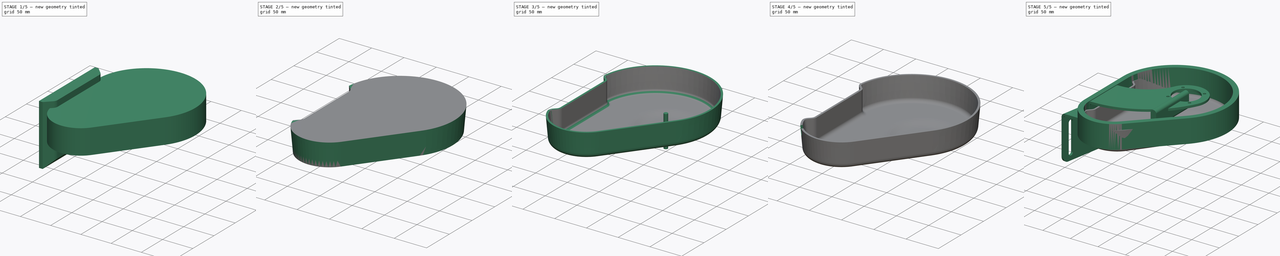
[diagram: build sequence overview — one tinted view per stage of 5, left to right]
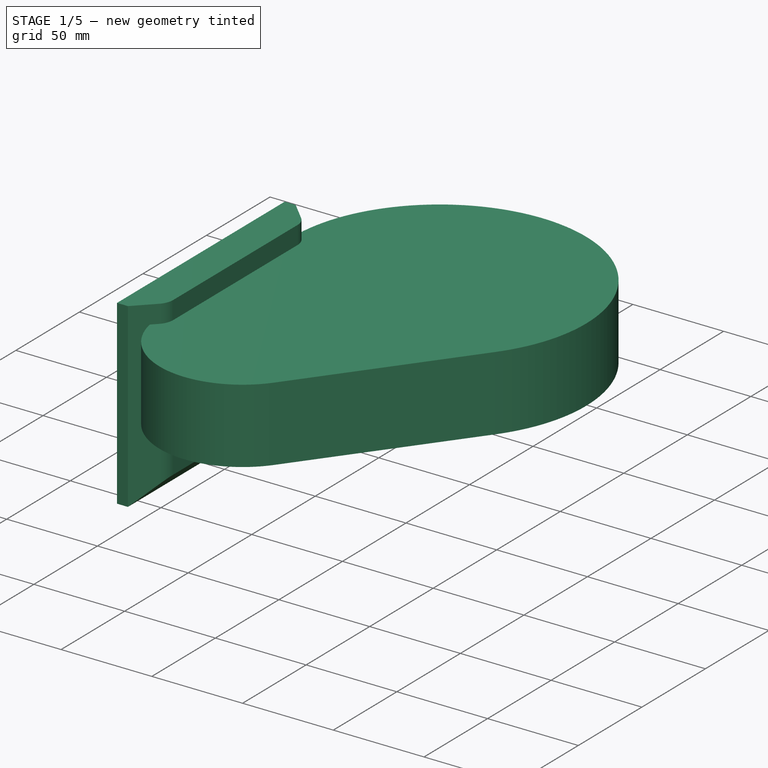
[diagram: stage 1 of 5 — iso view after this stage's code; geometry added in this stage tinted green]
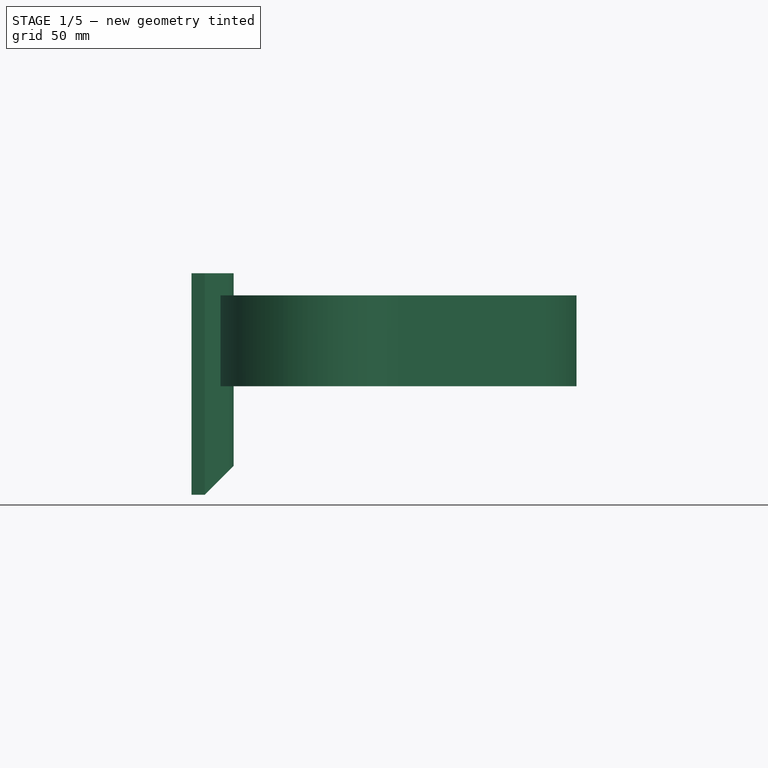
[diagram: stage 1 of 5 — front view after this stage's code; geometry added in this stage tinted green]
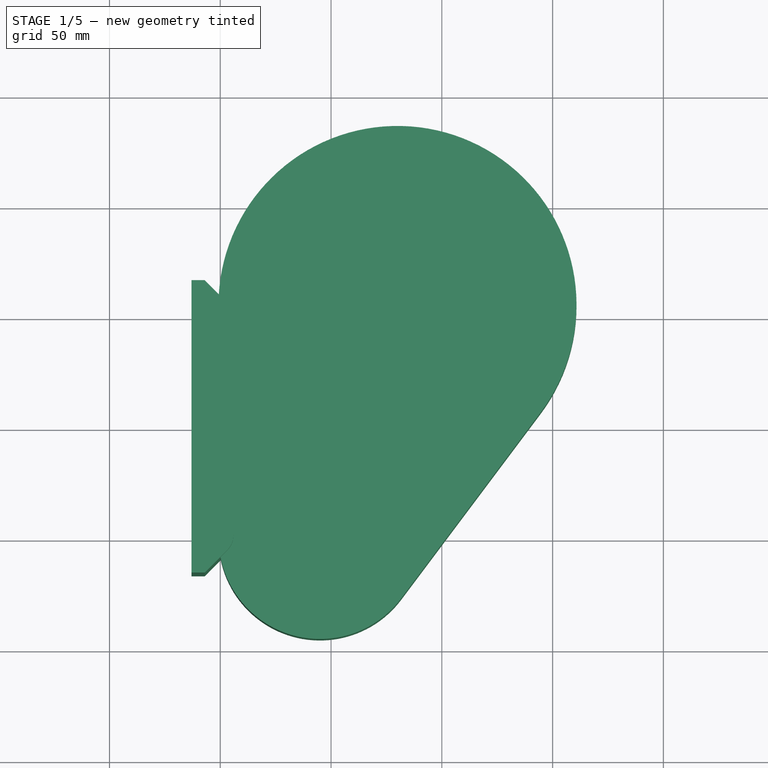
[diagram: stage 1 of 5 — top view after this stage's code; geometry added in this stage tinted green]
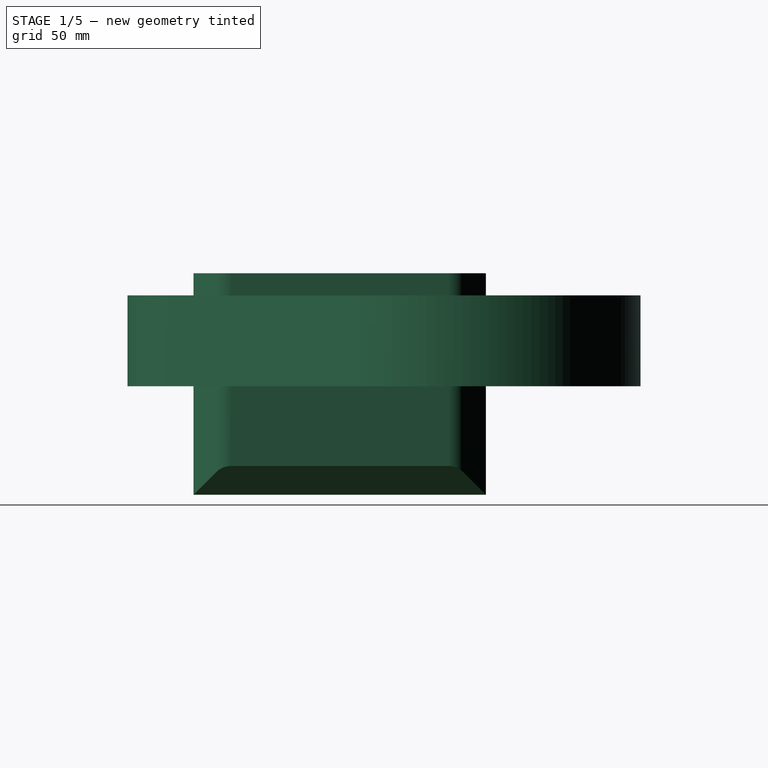
[diagram: stage 1 of 5 — right view after this stage's code; geometry added in this stage tinted green]
FCSTD DOCUMENT  (FreeCAD 0.17R6700 (Git))
Label: collar_bottom
License: All rights reserved
LicenseURL: http://en.wikipedia.org/wiki/All_rights_reserved
objects: Part::Feature×5, Sketcher::SketchObject×4, PartDesign::Pad×3, Part::Fillet×3, Part::Cut×3, Part::Thickness×2, Part::FeaturePython×2, Part::MultiFuse×2, Part::Cylinder×1, Part::Box×1, Part::Chamfer×1, PartDesign::Revolution×1, PartDesign::Draft×1
note: 33 computed .brp shape members not serialized (recipe doc carries the construction recipe); baked Part::Feature solids carry a one-line shape summary decoded from their .brp

FEATURE [Sketcher::SketchObject] Sketch
  Placement = pos=(0,0,-10) rot=(0,0,1;0rad)
  sketch-geometry (4):
    g0: ArcOfCircle CenterX=-20 CenterY=5 CenterZ=0 NormalX=0 NormalY=0 NormalZ=1 Radius=80.8 StartAngle=5.63968 EndAngle=9.42478
    g1: LineSegment StartX=-100.8 StartY=5.00008 StartZ=0 EndX=-100.8 EndY=-100 EndZ=0
    g2: LineSegment StartX=44.64 StartY=-43.48 StartZ=0 EndX=-18.3601 EndY=-127.48 EndZ=0
    g3: ArcOfCircle CenterX=-55 CenterY=-100 CenterZ=0 NormalX=0 NormalY=0 NormalZ=1 Radius=45.8 StartAngle=3.14159 EndAngle=5.63968
  constraints (14):
    c: Tangent(g1,g0)
    c: Tangent(g2,g0)
    c: Coincident(g0,g1)
    c: Coincident(g0,g2)
    c: DistanceX(g0,g-1) = 20
    c: Coincident(g3,g2)
    c: Coincident(g1,g3)
    c: Tangent(g3,g1)
    c: Tangent(g2,g3)
    c: Radius(g3) = 45.8
    c: Radius(g0) = 80.8
    c: DistanceY(g3,g-1) = 100
    c: Vertical(g1)
    c: DistanceY(g-1,g0) = 5
FEATURE [PartDesign::Pad] Pad
  Length = 41
  Length2 = 100
  Placement = pos=(0,0,-10) rot=(0,0,1;0rad)
  Reversed = true
  Sketch = -> Sketch
  Type = 0
FEATURE [Part::Box] Box  label="Cube"
  Height = 100
  Length = 19
  Placement = pos=(-113,-116,-100) rot=(0,0,1;0rad)
  Width = 132
FEATURE [Part::Chamfer] Chamfer
  Base = -> Box
  Edges = 3 edges r=13: [Edge5,Edge7,Edge8]
FEATURE [Part::Fillet] Fillet
  Base = -> Chamfer
  Edges = 2 edges r=10: [Edge2,Edge3]
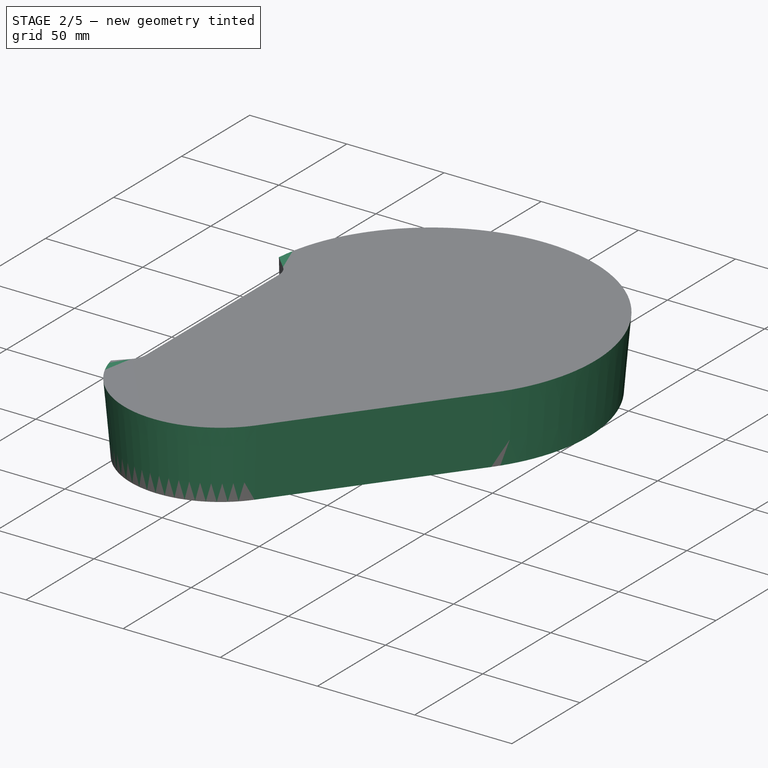
[diagram: stage 2 of 5 — iso view after this stage's code; geometry added in this stage tinted green]
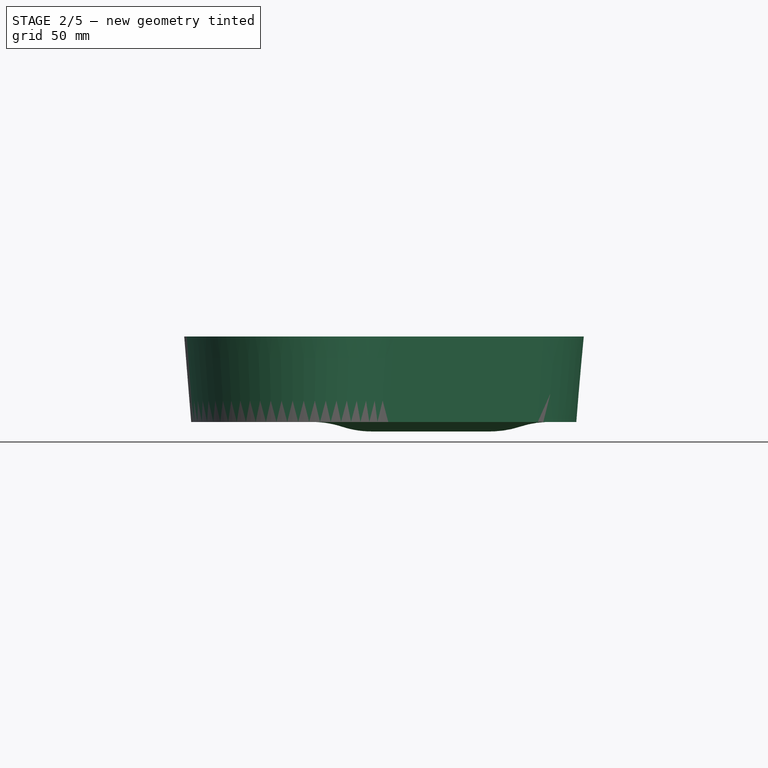
[diagram: stage 2 of 5 — front view after this stage's code; geometry added in this stage tinted green]
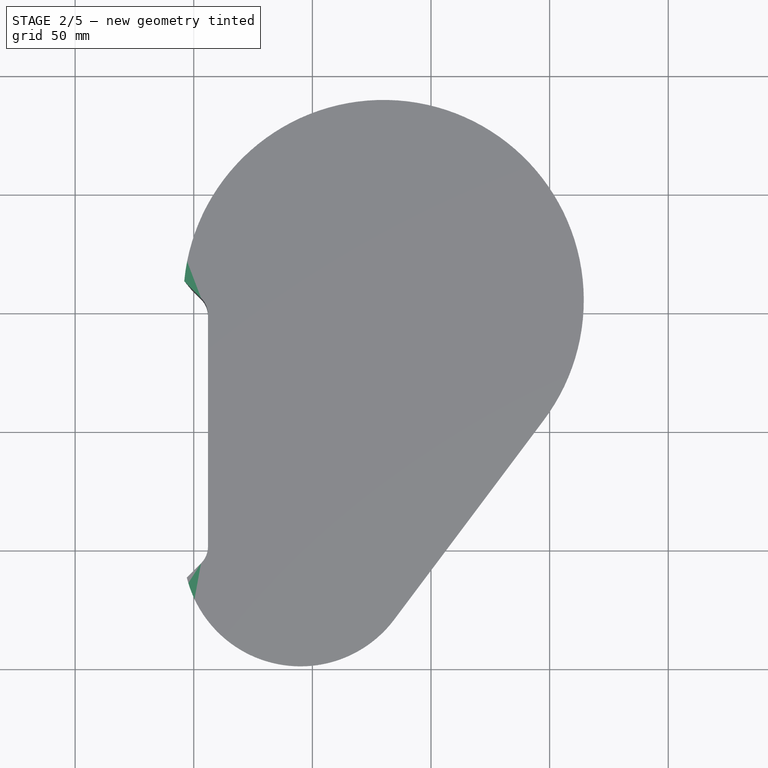
[diagram: stage 2 of 5 — top view after this stage's code; geometry added in this stage tinted green]
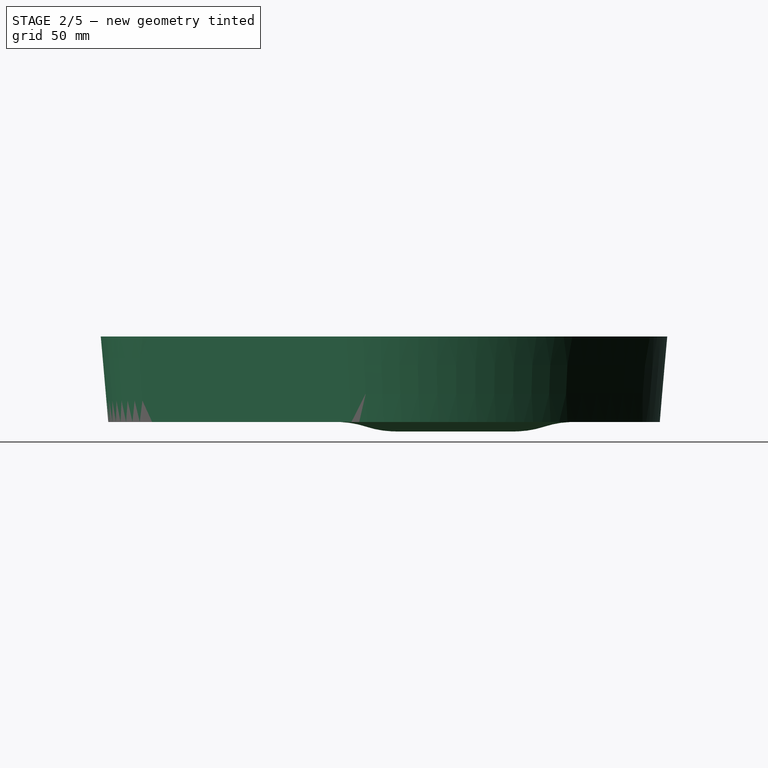
[diagram: stage 2 of 5 — right view after this stage's code; geometry added in this stage tinted green]
FEATURE [Part::Feature] Part__Feature  label="joy"
  Placement = pos=(0,0,-16.1) rot=(0.57735,-0.57735,-0.57735;2.0944rad)
  shape: bbox 17.66 x 57.66 x 25.13 mm, 562 faces (baked)
FEATURE [Part::Feature] Part__Feature001  label="joy001"
  Placement = pos=(0,0,-16.1) rot=(0.57735,-0.57735,-0.57735;2.0944rad)
  shape: bbox 74.63 x 74.63 x 129.8 mm, 2403 faces (baked)
FEATURE [Part::Feature] Part__Feature002  label="joy002"
  Placement = pos=(0,0,-16.1) rot=(0.57735,-0.57735,-0.57735;2.0944rad)
  shape: bbox 11.11 x 11.11 x 64.77 mm, 36 faces (baked)
FEATURE [Part::Feature] Part__Feature003  label="joy003"
  Placement = pos=(0,0,-16.1) rot=(0.57735,-0.57735,-0.57735;2.0944rad)
  shape: bbox 23.77 x 72.14 x 51.34 mm, 195 faces (baked)
FEATURE [Sketcher::SketchObject] Sketch017
  Placement = pos=(0,0,0) rot=(1,0,0;1.5708rad)
  sketch-geometry (7):
    g0: LineSegment StartX=-300 StartY=-46 StartZ=0 EndX=-50 EndY=-46 EndZ=0
    g1: LineSegment StartX=0 StartY=-196 StartZ=0 EndX=-300 EndY=-196 EndZ=0
    g2: LineSegment StartX=-300 StartY=-196 StartZ=0 EndX=-300 EndY=-46 EndZ=0
    g3: LineSegment StartX=0 StartY=-50 StartZ=0 EndX=0 EndY=-196 EndZ=0
    g4: ArcOfCircle CenterX=-50 CenterY=-86.0624 CenterZ=0 NormalX=0 NormalY=0 NormalZ=1 Radius=40.0624 StartAngle=1.25348 EndAngle=1.5708
    g5: LineSegment StartX=0 StartY=-50 StartZ=0 EndX=-25 EndY=-50 EndZ=0
    g6: ArcOfCircle CenterX=-25 CenterY=-9.93761 CenterZ=0 NormalX=0 NormalY=0 NormalZ=1 Radius=40.0624 StartAngle=4.39508 EndAngle=4.71239
  constraints (23):
    c: Coincident(g1,g2)
    c: Coincident(g2,g0)
    c: Horizontal(g0)
    c: Horizontal(g1)
    c: Vertical(g2)
    c: DistanceY(g2,g2) = 150
    c: DistanceX(g1,g1) = 300
    c: PointOnObject(g1,g-2)
    c: Coincident(g3,g1)
    c: Coincident(g4,g0)
    c: Tangent(g4,g0)
    c: DistanceY(g5,g-1) = 50
    c: DistanceY(g0,g-1) = 46
    c: DistanceX(g0,g-1) = 50
    c: PointOnObject(g3,g-2)
    c: Coincident(g5,g3)
    c: Horizontal(g5)
    c: Coincident(g6,g5)
    c: Coincident(g6,g4)
    c: Tangent(g6,g4)
    c: Tangent(g6,g5)
    c: DistanceX(g5,g-1) = 25
    c: Equal(g6,g4)
FEATURE [PartDesign::Revolution] Revolution
  Angle = 360
  Axis = (0,0,1)
  Base = (0,0,0)
  Placement = pos=(0,0,0) rot=(1,0,0;1.5708rad)
  ReferenceAxis = -> Sketch017 [V_Axis]
  Sketch = -> Sketch017
FEATURE [Part::Cut] Cut
  Base = -> Pad
  Tool = -> Fillet
FEATURE [PartDesign::Draft] Draft
  Angle = 5
  Base = -> Cut [Face5,Face10,Face1]
  NeutralPlane = -> Cut [Face4]
FEATURE [Part::Cut] Cut001
  Base = -> Draft
  Tool = -> Revolution
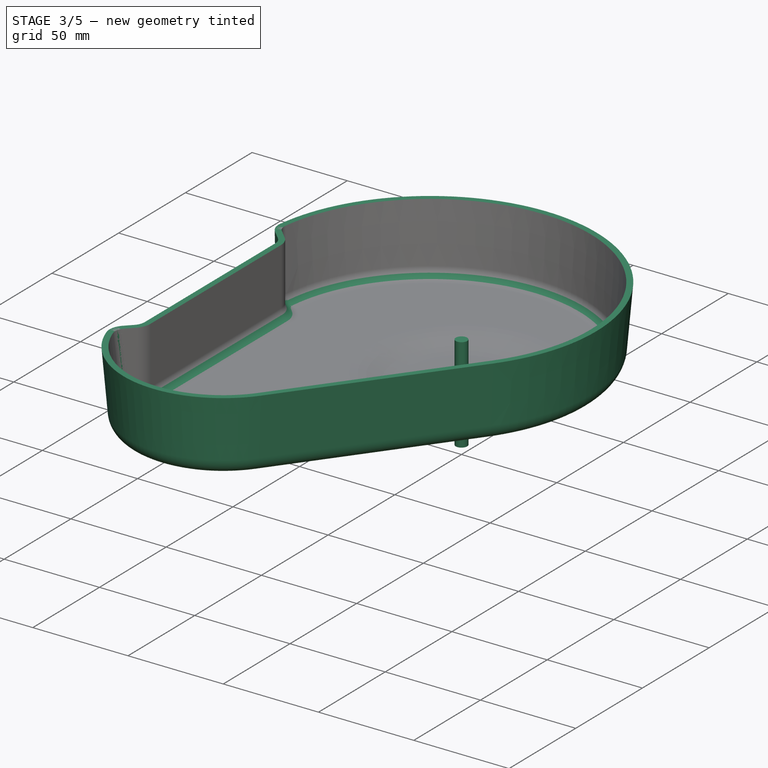
[diagram: stage 3 of 5 — iso view after this stage's code; geometry added in this stage tinted green]
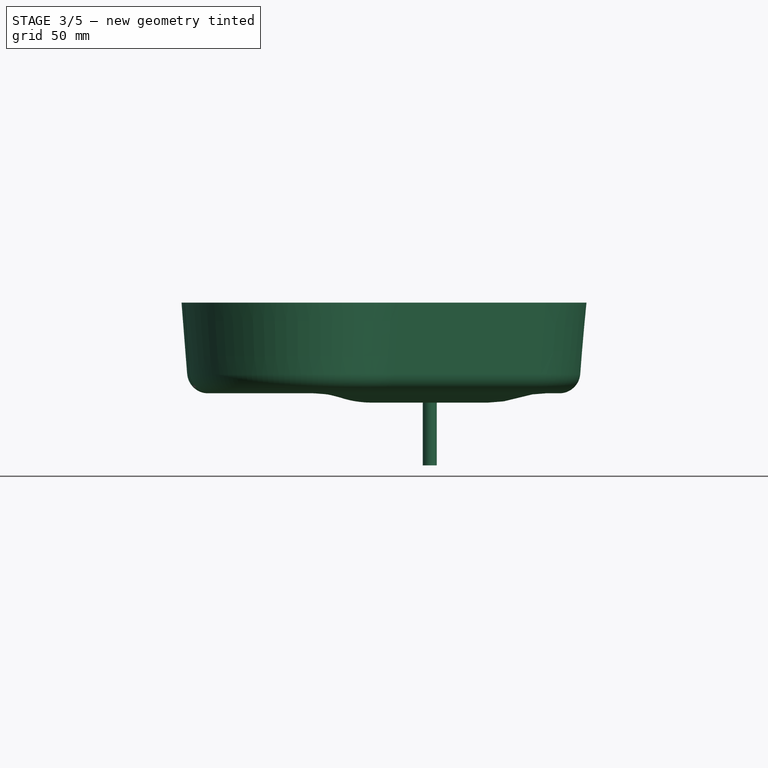
[diagram: stage 3 of 5 — front view after this stage's code; geometry added in this stage tinted green]
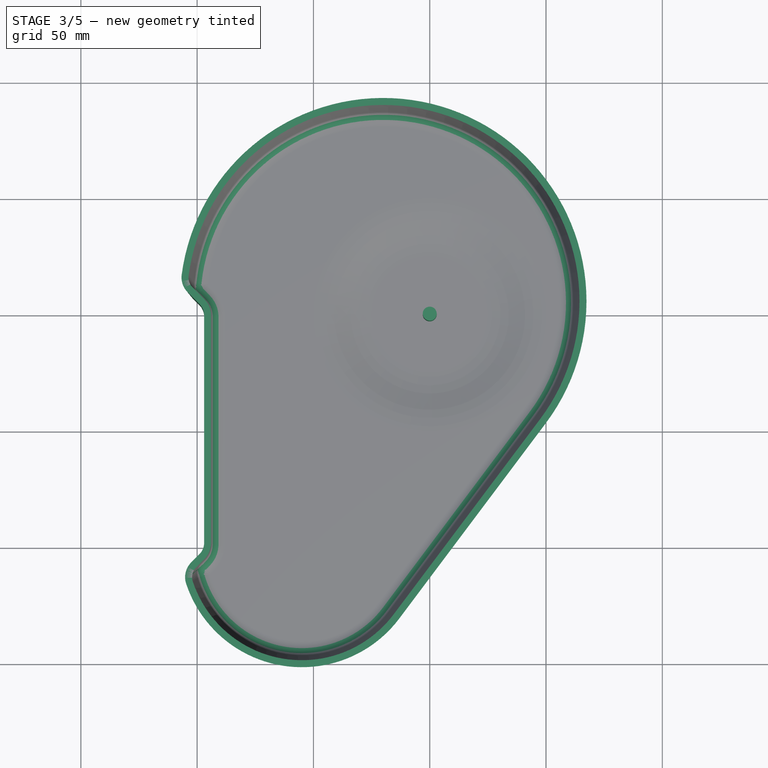
[diagram: stage 3 of 5 — top view after this stage's code; geometry added in this stage tinted green]
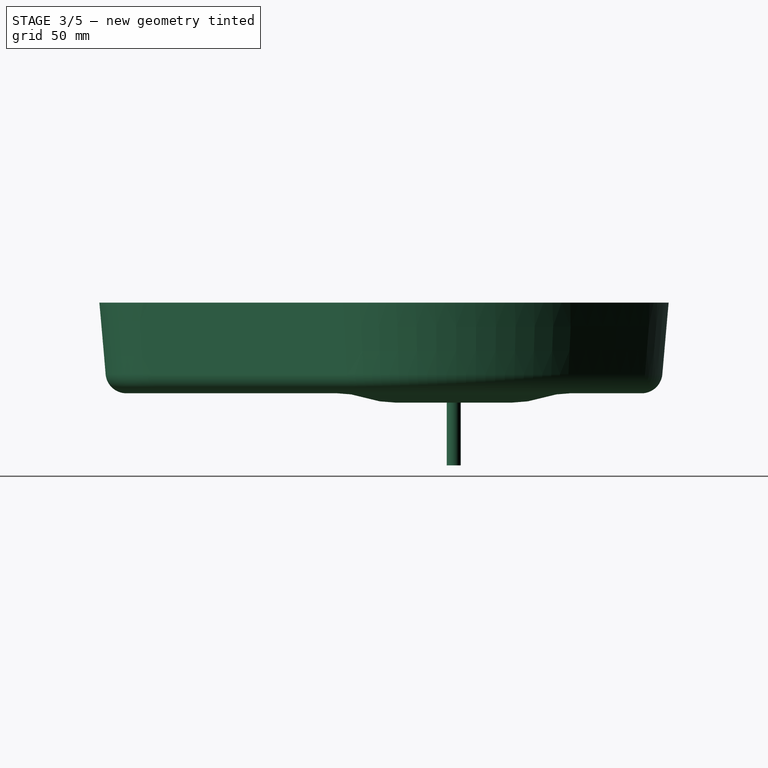
[diagram: stage 3 of 5 — right view after this stage's code; geometry added in this stage tinted green]
FEATURE [Part::Cylinder] Cylinder001  label="water_hole"
  Angle = 360
  Height = 50
  Placement = pos=(0,0,-80) rot=(0,0,1;0rad)
  Radius = 3
FEATURE [Part::Fillet] Fillet001
  Base = -> Cut001
  Edges = 2 edges r=6: [Edge2,Edge25]
FEATURE [Part::Fillet] Fillet002
  Base = -> Fillet001
  Edges = 1 edges r=6: [Edge18]
FEATURE [Part::Thickness] Thickness001
  Faces = -> Fillet002 [Face4]
  Intersection = false
  Join = 0
  Mode = 0
  SelfIntersection = false
  Value = 3
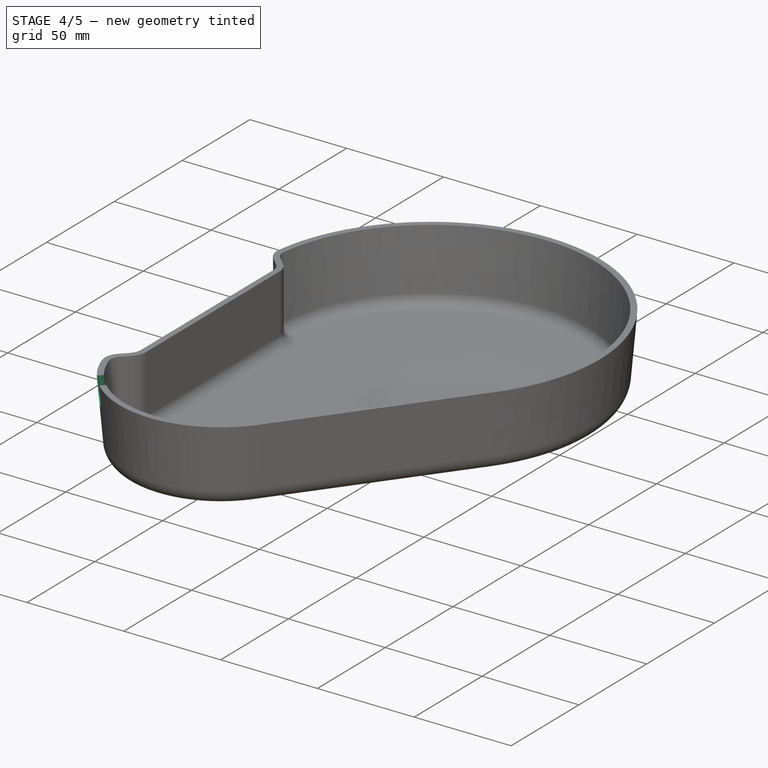
[diagram: stage 4 of 5 — iso view after this stage's code; geometry added in this stage tinted green]
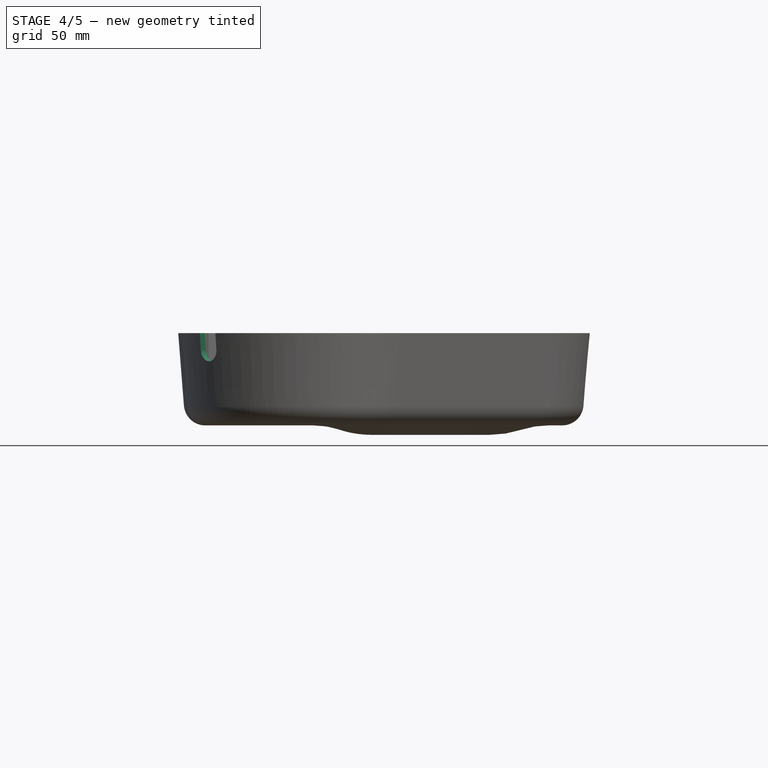
[diagram: stage 4 of 5 — front view after this stage's code; geometry added in this stage tinted green]
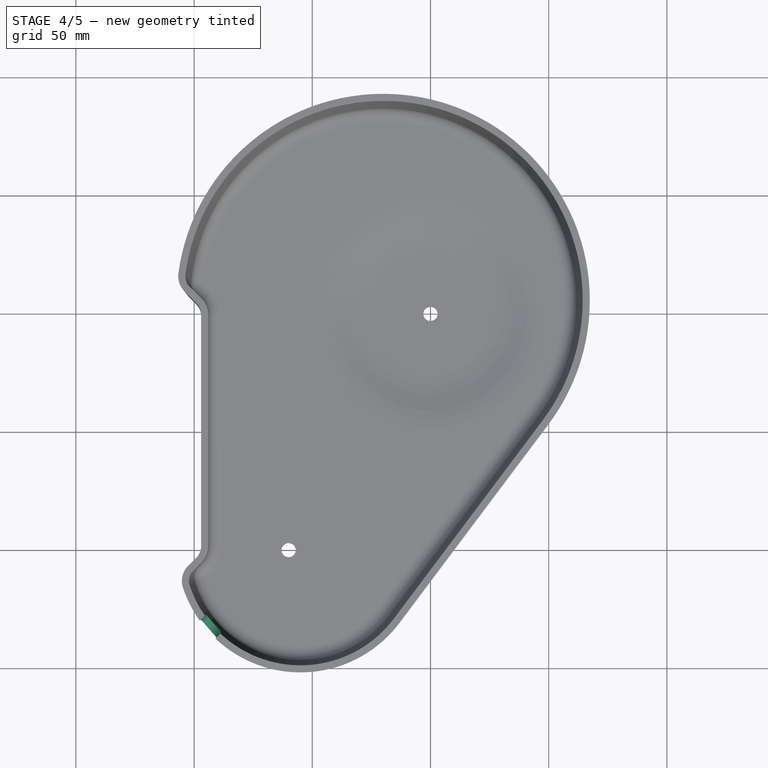
[diagram: stage 4 of 5 — top view after this stage's code; geometry added in this stage tinted green]
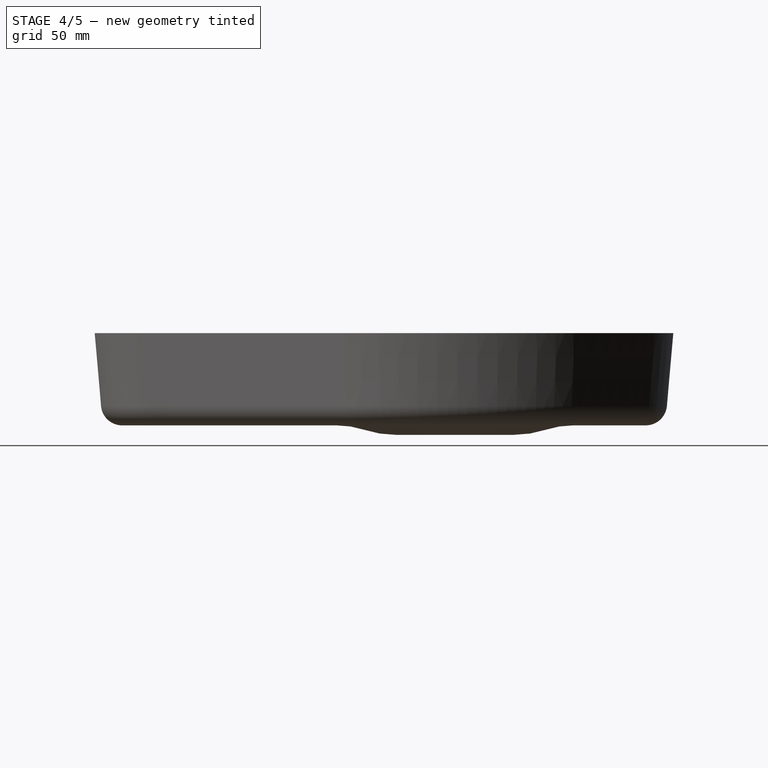
[diagram: stage 4 of 5 — right view after this stage's code; geometry added in this stage tinted green]
FEATURE [Part::FeaturePython] Clone001  label="Clone of water_hole"  # Draft clone (typed FeaturePython)
  Objects = -> [Cylinder001]
  Placement = pos=(-60,-100,-80) rot=(0,0,1;0rad)
  Scale = (1,1,1)
FEATURE [Part::MultiFuse] Fusion  label="water_holes"
  Shapes = -> [Clone001,Cylinder001]
FEATURE [Part::Feature] Pad005001  label="wire_hole001"
  Placement = pos=(-60,-100,0) rot=(0,0,-1;0.785398rad)
  shape: bbox 67.18 x 67.18 x 30 mm, 6 faces (baked)
FEATURE [Part::MultiFuse] Fusion001  label="holes"
  Shapes = -> [Fusion,Pad005001]
FEATURE [Part::Cut] Cut002
  Base = -> Thickness001
  Tool = -> Fusion001
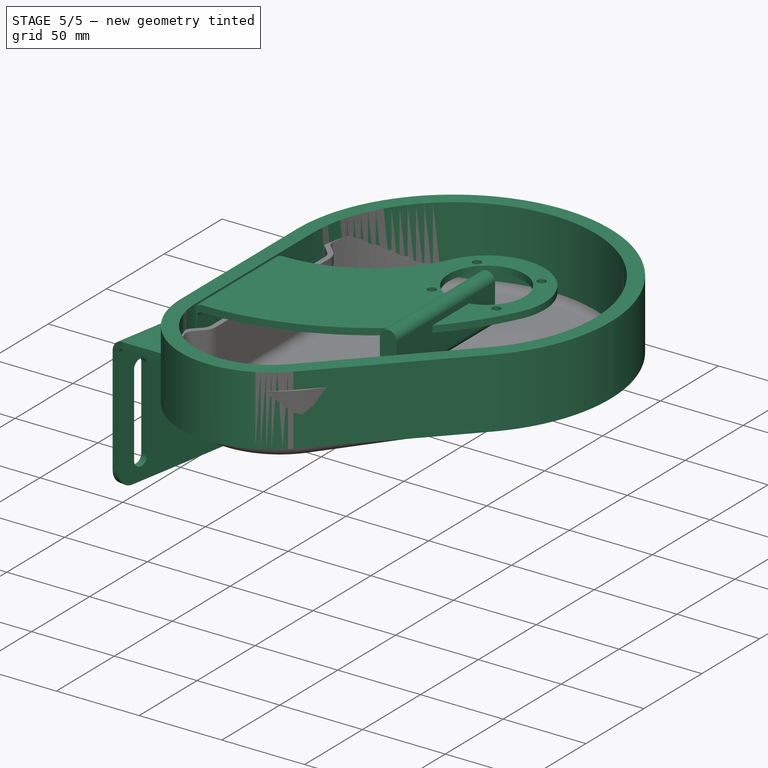
[diagram: stage 5 of 5 — iso view after this stage's code; geometry added in this stage tinted green]
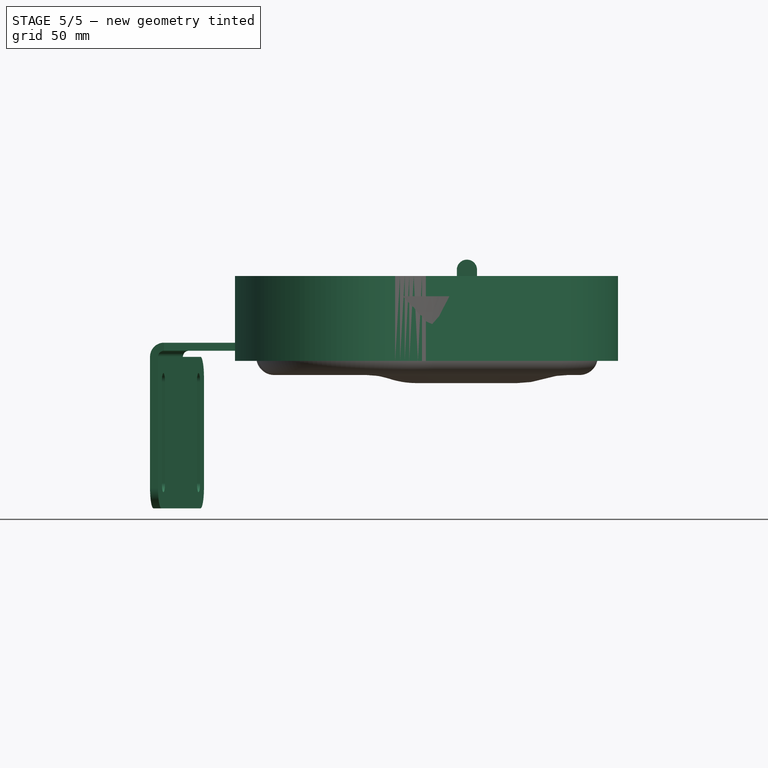
[diagram: stage 5 of 5 — front view after this stage's code; geometry added in this stage tinted green]
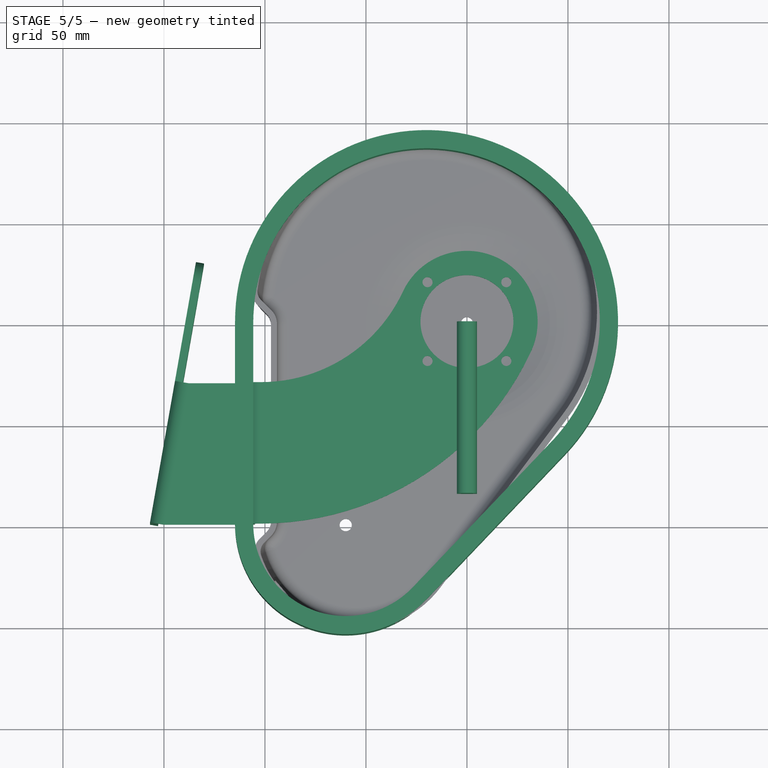
[diagram: stage 5 of 5 — top view after this stage's code; geometry added in this stage tinted green]
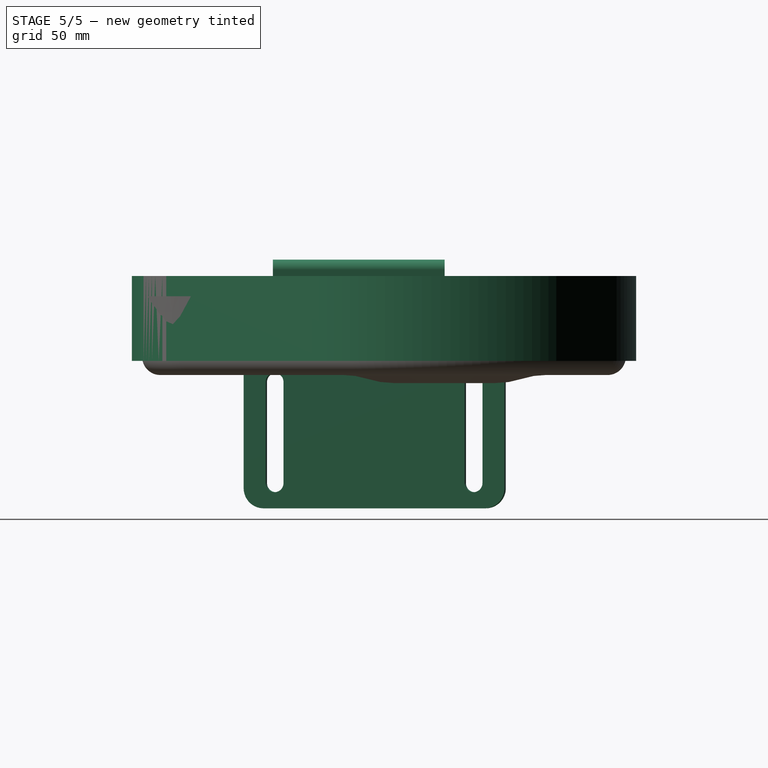
[diagram: stage 5 of 5 — right view after this stage's code; geometry added in this stage tinted green]
FEATURE [Sketcher::SketchObject] Sketch016
  sketch-geometry (4):
    g0: ArcOfCircle CenterX=-20 CenterY=0 CenterZ=0 NormalX=0 NormalY=0 NormalZ=1 Radius=85.8 StartAngle=5.52217 EndAngle=9.42478
    g1: LineSegment StartX=-105.8 StartY=2.20861e-06 StartZ=0 EndX=-105.8 EndY=-100 EndZ=0
    g2: LineSegment StartX=42.1311 StartY=-59.1724 StartZ=0 EndX=-26.8344 EndY=-131.586 EndZ=0
    g3: ArcOfCircle CenterX=-60 CenterY=-100 CenterZ=0 NormalX=0 NormalY=0 NormalZ=1 Radius=45.8 StartAngle=3.14159 EndAngle=5.52217
  constraints (14):
    c: PointOnObject(g0,g-1)
    c: Tangent(g1,g0)
    c: Tangent(g2,g0)
    c: Coincident(g0,g1)
    c: Coincident(g0,g2)
    c: DistanceX(g0,g-1) = 20
    c: Coincident(g3,g2)
    c: Coincident(g1,g3)
    c: Tangent(g3,g1)
    c: Tangent(g2,g3)
    c: Radius(g3) = 45.8
    c: Radius(g0) = 85.8
    c: DistanceY(g3,g-1) = 100
    c: Vertical(g1)
FEATURE [PartDesign::Pad] Pad004
  Length = 42
  Length2 = 100
  Reversed = true
  Sketch = -> Sketch016
  Type = 0
FEATURE [Part::Thickness] Thickness
  Faces = -> Pad004 [Face5,Face6]
  Intersection = false
  Join = 0
  Mode = 0
  SelfIntersection = false
  Value = 9
FEATURE [Part::FeaturePython] mounting_metal_01  # a2plus imported part (geometry in sourceFile) (typed FeaturePython)
  fixedPosition = true
  sourceFile = <userpath>/uw/keypad/hw/mounting_metal.fcstd
  timeLastImport = 1.51195e+09
  updateColors = true
FEATURE [Sketcher::SketchObject] Sketch018
  Placement = pos=(0,0,-16.9) rot=(1,0,0;1.5708rad)
  sketch-geometry (4):
    g0: ArcOfCircle CenterX=0 CenterY=20 CenterZ=0 NormalX=0 NormalY=0 NormalZ=1 Radius=5 StartAngle=0 EndAngle=3.14159
    g1: ArcOfCircle CenterX=0 CenterY=0 CenterZ=0 NormalX=0 NormalY=0 NormalZ=1 Radius=5 StartAngle=3.14159 EndAngle=6.28319
    g2: LineSegment StartX=-5 StartY=20 StartZ=0 EndX=-5 EndY=0 EndZ=0
    g3: LineSegment StartX=5 StartY=20 StartZ=0 EndX=5 EndY=0 EndZ=0
  constraints (10):
    c: Tangent(g0,g3) = 1.5708
    c: Tangent(g0,g2) = -1.5708
    c: Tangent(g2,g1) = -1.5708
    c: Tangent(g3,g1) = 1.5708
    c: Vertical(g2)
    c: Equal(g0,g1)
    c: PointOnObject(g0,g-2)
    c: Radius(g0) = 5
    c: Coincident(g1,g-1)
    c: DistanceY(g-1,g0) = 20
FEATURE [PartDesign::Pad] Pad005  label="wire_hole"
  Length = 85
  Length2 = 100
  Placement = pos=(0,0,-16.9) rot=(1,0,0;1.5708rad)
  Sketch = -> Sketch018
  Type = 0
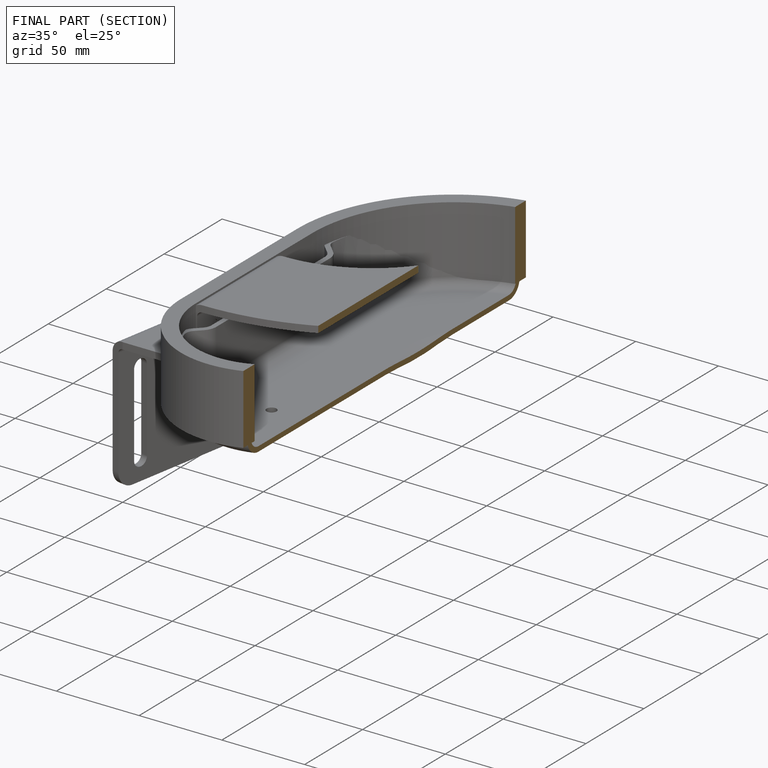
[diagram: finished part — half-section view (interior)]
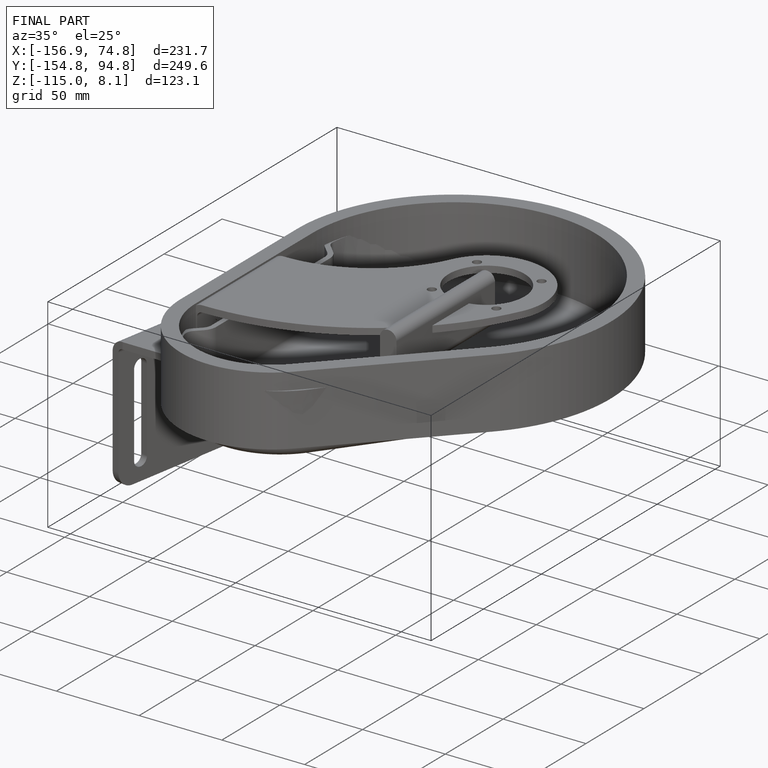
[diagram: finished part — iso view with bounding-box wireframe]
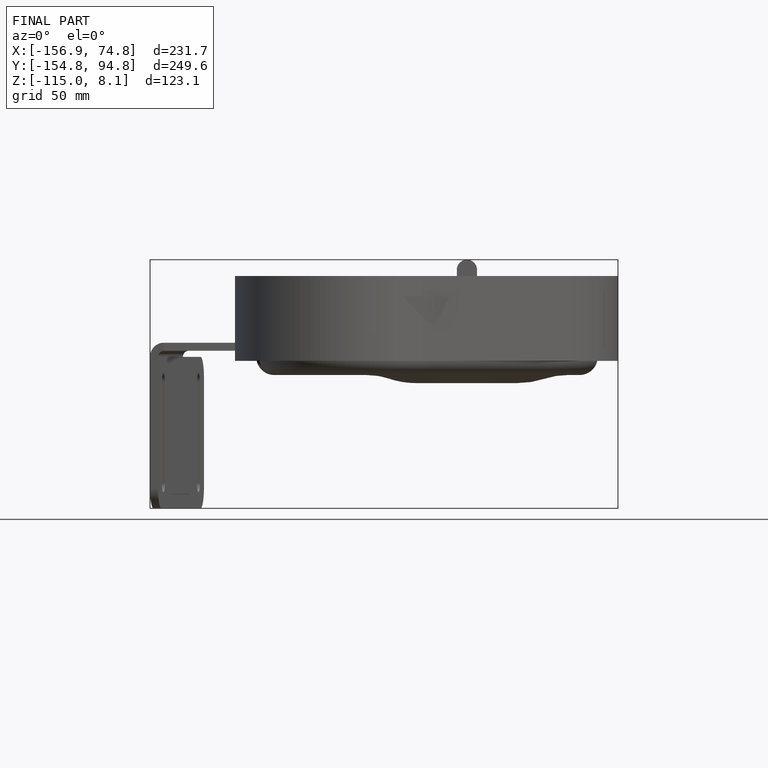
[diagram: finished part — front view with bounding-box wireframe]
